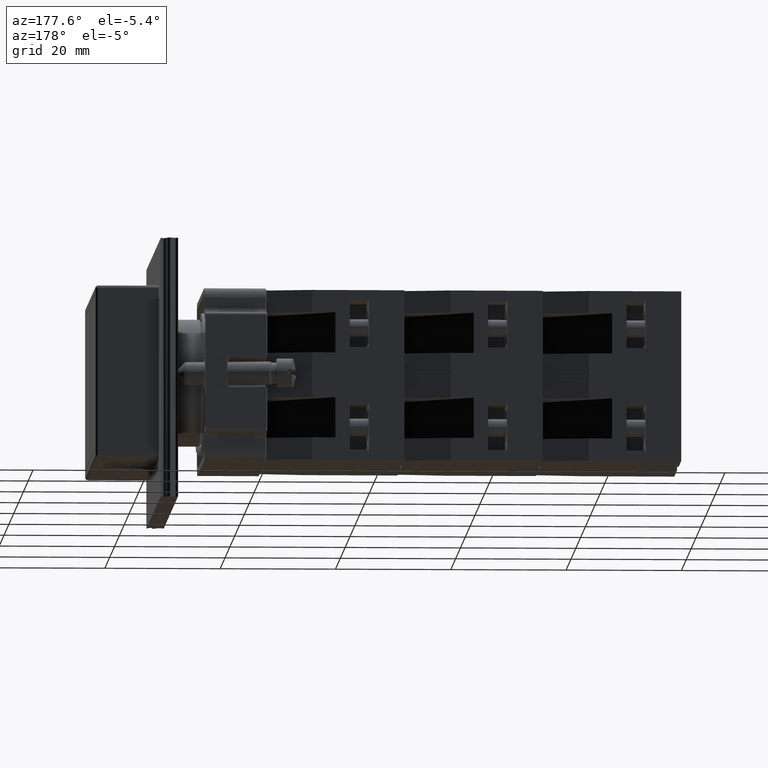
[diagram: clean part render]
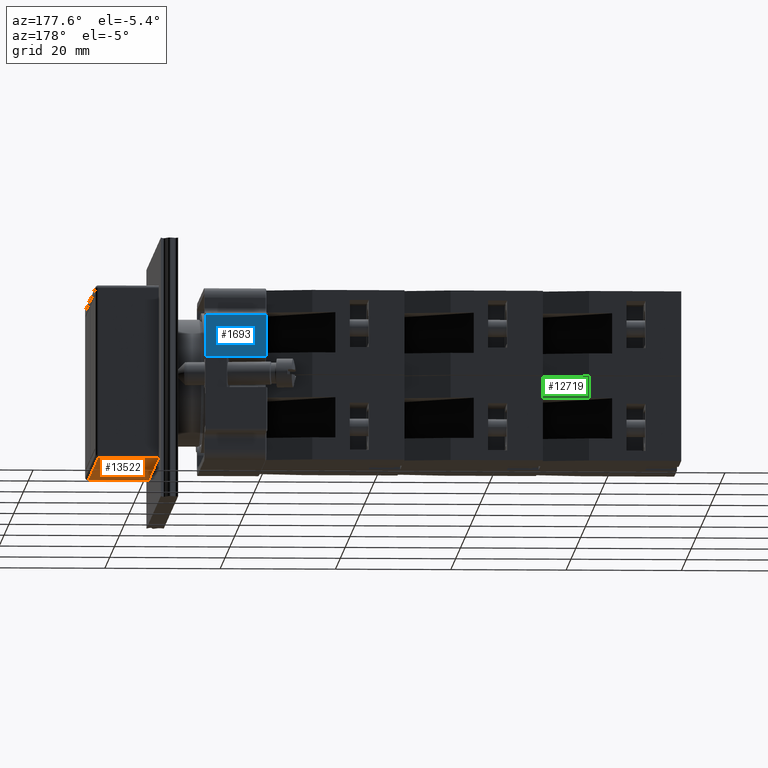
[diagram: same view with three faces highlighted in distinct colors, each labeled with its STEP entity id]
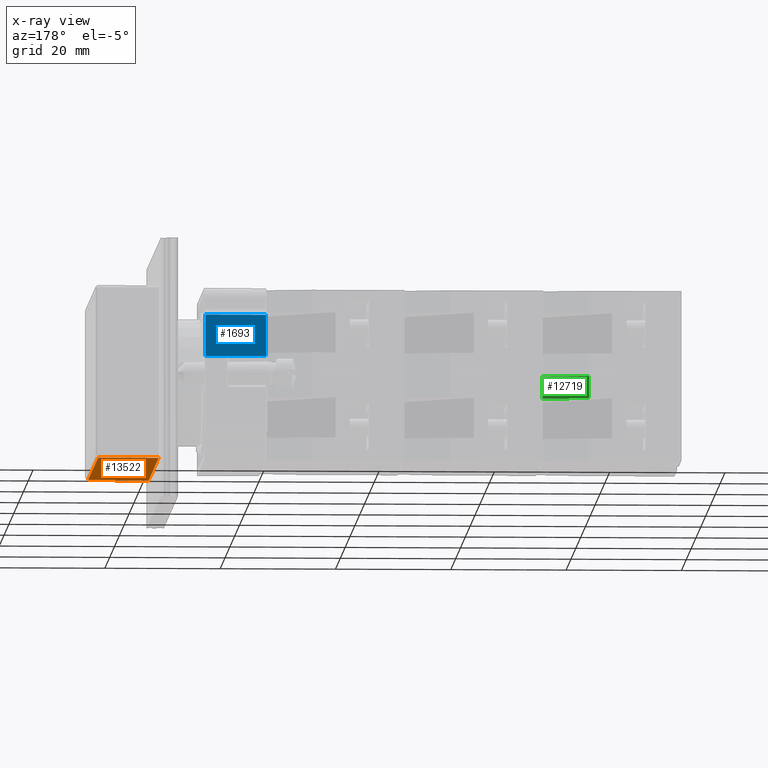
[diagram: x-ray of the same camera — body ghosted, the three highlighted faces saturated]
A machine part, auxiliary view with three faces highlighted in distinct colors.
The next image is the same camera in x-ray (body ghosted, the three faces saturated) — at least one of them is partly hidden behind the body in this view.
Their STEP definitions:

[orange] entity #13522 — the highlighted planar face has unit normal (0, -0, -1).
#13326=CARTESIAN_POINT('',(2.060615972896345,20.843314320504650,-15.000000000000002));
#13327=VERTEX_POINT('',#13326);
#13343=CARTESIAN_POINT('',(2.060615972896345,-20.906685679495357,-14.999999999999996));
#13344=VERTEX_POINT('',#13343);
#13352=CARTESIAN_POINT('',(2.060615972896345,-20.906685679495357,-14.999999999999996));
#13353=DIRECTION('',(0.0,1.0,0.0));
#13354=VECTOR('',#13353,41.750000000000007);
#13355=LINE('',#13352,#13354);
#13356=EDGE_CURVE('',#13344,#13327,#13355,.T.);
#13473=CARTESIAN_POINT('',(-8.439384027103658,20.843314320504650,-15.000000000000002));
#13474=VERTEX_POINT('',#13473);
#13475=CARTESIAN_POINT('',(-8.439384027103658,20.843314320504650,-15.000000000000002));
#13476=DIRECTION('',(1.0,0.0,0.0));
#13477=VECTOR('',#13476,10.500000000000004);
#13478=LINE('',#13475,#13477);
#13479=EDGE_CURVE('',#13474,#13327,#13478,.T.);
#13499=CARTESIAN_POINT('',(-8.439384027103658,20.843314320504650,-15.000000000000002));
#13500=DIRECTION('',(0.0,0.0,-1.0));
#13501=DIRECTION('',(-1.0,0.0,0.0));
#13502=AXIS2_PLACEMENT_3D('',#13499,#13500,#13501);
#13503=PLANE('',#13502);
#13504=ORIENTED_EDGE('',*,*,#13356,.F.);
#13505=CARTESIAN_POINT('',(-8.439384027103658,-20.906685679495357,-14.999999999999996));
#13506=VERTEX_POINT('',#13505);
#13507=CARTESIAN_POINT('',(-8.439384027103658,-20.906685679495357,-14.999999999999996));
#13508=DIRECTION('',(1.0,0.0,0.0));
#13509=VECTOR('',#13508,10.500000000000004);
#13510=LINE('',#13507,#13509);
#13511=EDGE_CURVE('',#13506,#13344,#13510,.T.);
#13512=ORIENTED_EDGE('',*,*,#13511,.F.);
#13513=CARTESIAN_POINT('',(-8.439384027103658,20.843314320504650,-15.000000000000002));
#13514=DIRECTION('',(0.0,-1.0,0.0));
#13515=VECTOR('',#13514,41.750000000000007);
#13516=LINE('',#13513,#13515);
#13517=EDGE_CURVE('',#13474,#13506,#13516,.T.);
#13518=ORIENTED_EDGE('',*,*,#13517,.F.);
#13519=ORIENTED_EDGE('',*,*,#13479,.T.);
#13520=EDGE_LOOP('',(#13504,#13512,#13518,#13519));
#13521=FACE_OUTER_BOUND('',#13520,.T.);
#13522=ADVANCED_FACE('',(#13521),#13503,.T.);

[blue] entity #1693 — the highlighted planar face has unit normal (0, 1, 0).
#212=CARTESIAN_POINT('',(20.617219691723896,7.467864828157555,10.500000000000000));
#213=VERTEX_POINT('',#212);
#589=CARTESIAN_POINT('',(20.617219691723896,0.267864828157554,10.500000000000000));
#590=VERTEX_POINT('',#589);
#712=CARTESIAN_POINT('',(20.617219691723896,0.267864828157554,10.500000000000000));
#713=DIRECTION('',(0.0,1.0,0.0));
#714=VECTOR('',#713,7.200000000000001);
#715=LINE('',#712,#714);
#716=EDGE_CURVE('',#590,#213,#715,.T.);
#1636=CARTESIAN_POINT('',(20.617219691723896,7.467864828157555,0.0));
#1637=VERTEX_POINT('',#1636);
#1638=CARTESIAN_POINT('',(20.617219691723896,7.467864828157555,0.0));
#1639=DIRECTION('',(0.0,0.0,1.0));
#1640=VECTOR('',#1639,10.500000000000000);
#1641=LINE('',#1638,#1640);
#1642=EDGE_CURVE('',#1637,#213,#1641,.T.);
#1670=CARTESIAN_POINT('',(20.617219691723896,7.467864828157555,0.0));
#1671=DIRECTION('',(1.0,0.0,0.0));
#1672=DIRECTION('',(0.0,0.0,-1.0));
#1673=AXIS2_PLACEMENT_3D('',#1670,#1671,#1672);
#1674=PLANE('',#1673);
#1675=ORIENTED_EDGE('',*,*,#716,.F.);
#1676=CARTESIAN_POINT('',(20.617219691723896,0.267864828157554,0.0));
#1677=VERTEX_POINT('',#1676);
#1678=CARTESIAN_POINT('',(20.617219691723896,0.267864828157554,0.0));
#1679=DIRECTION('',(0.0,0.0,1.0));
#1680=VECTOR('',#1679,10.500000000000000);
#1681=LINE('',#1678,#1680);
#1682=EDGE_CURVE('',#1677,#590,#1681,.T.);
#1683=ORIENTED_EDGE('',*,*,#1682,.F.);
#1684=CARTESIAN_POINT('',(20.617219691723896,0.267864828157554,0.0));
#1685=DIRECTION('',(0.0,1.0,0.0));
#1686=VECTOR('',#1685,7.200000000000001);
#1687=LINE('',#1684,#1686);
#1688=EDGE_CURVE('',#1677,#1637,#1687,.T.);
#1689=ORIENTED_EDGE('',*,*,#1688,.T.);
#1690=ORIENTED_EDGE('',*,*,#1642,.T.);
#1691=EDGE_LOOP('',(#1675,#1683,#1689,#1690));
#1692=FACE_OUTER_BOUND('',#1691,.T.);
#1693=ADVANCED_FACE('',(#1692),#1674,.T.);

[green] entity #12719 — the highlighted planar face has unit normal (0.1843, 0.9829, -0).
#11006=CARTESIAN_POINT('',(-43.436741828918457,-0.202926676720391,3.850000000000000));
#11007=VERTEX_POINT('',#11006);
#11008=CARTESIAN_POINT('',(-44.936741828918457,7.797073323279618,3.850000000000000));
#11009=VERTEX_POINT('',#11008);
#11010=CARTESIAN_POINT('',(-43.436741828918457,-0.202926676720391,3.850000000000000));
#11011=DIRECTION('',(-0.184288535050185,0.982872186934322,0.0));
#11012=VECTOR('',#11011,8.139410298049864);
#11013=LINE('',#11010,#11012);
#11014=EDGE_CURVE('',#11007,#11009,#11013,.T.);
#11064=CARTESIAN_POINT('',(-44.936741828918457,7.797073323279626,0.0));
#11065=VERTEX_POINT('',#11064);
#11072=CARTESIAN_POINT('',(-44.936741828918457,7.797073323279626,0.0));
#11073=DIRECTION('',(0.0,0.0,1.0));
#11074=VECTOR('',#11073,3.850000000000000);
#11075=LINE('',#11072,#11074);
#11076=EDGE_CURVE('',#11065,#11009,#11075,.T.);
#11247=CARTESIAN_POINT('',(-43.436741828918457,-0.202926676720380,0.0));
#11248=VERTEX_POINT('',#11247);
#11249=CARTESIAN_POINT('',(-43.436741828918457,-0.202926676720380,0.0));
#11250=DIRECTION('',(0.0,0.0,1.0));
#11251=VECTOR('',#11250,3.850000000000000);
#11252=LINE('',#11249,#11251);
#11253=EDGE_CURVE('',#11248,#11007,#11252,.T.);
#12703=CARTESIAN_POINT('',(-43.436741828918457,-0.202926676720380,0.0));
#12704=DIRECTION('',(-0.982872186934322,-0.184288535050186,0.0));
#12705=DIRECTION('',(0.0,0.0,1.0));
#12706=AXIS2_PLACEMENT_3D('',#12703,#12704,#12705);
#12707=PLANE('',#12706);
#12708=ORIENTED_EDGE('',*,*,#11014,.T.);
#12709=ORIENTED_EDGE('',*,*,#11076,.F.);
#12710=CARTESIAN_POINT('',(-43.436741828918457,-0.202926676720380,0.0));
#12711=DIRECTION('',(-0.184288535050185,0.982872186934322,0.0));
#12712=VECTOR('',#12711,8.139410298049860);
#12713=LINE('',#12710,#12712);
#12714=EDGE_CURVE('',#11248,#11065,#12713,.T.);
#12715=ORIENTED_EDGE('',*,*,#12714,.F.);
#12716=ORIENTED_EDGE('',*,*,#11253,.T.);
#12717=EDGE_LOOP('',(#12708,#12709,#12715,#12716));
#12718=FACE_OUTER_BOUND('',#12717,.T.);
#12719=ADVANCED_FACE('',(#12718),#12707,.T.);